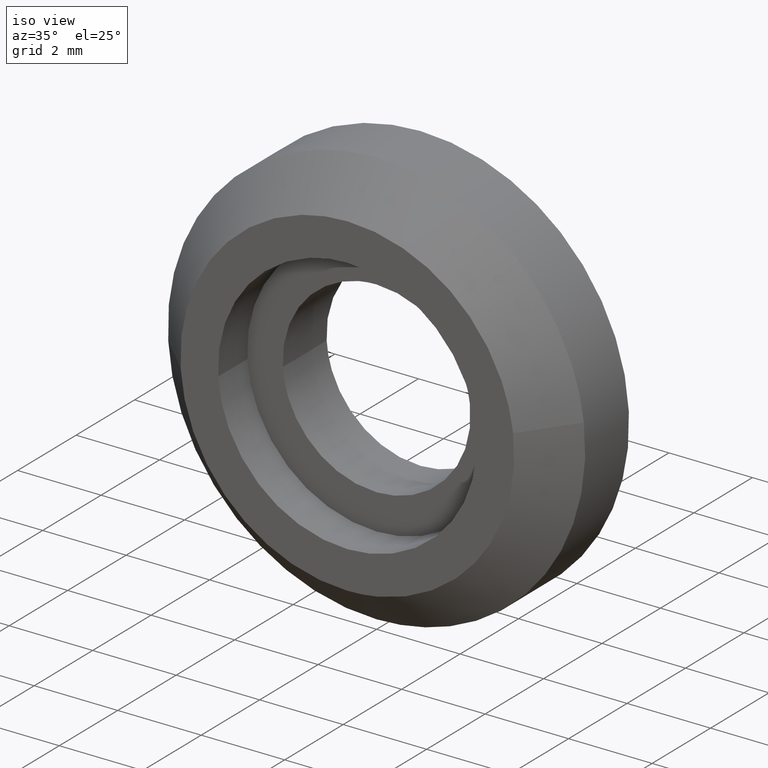
[diagram: clean part render]
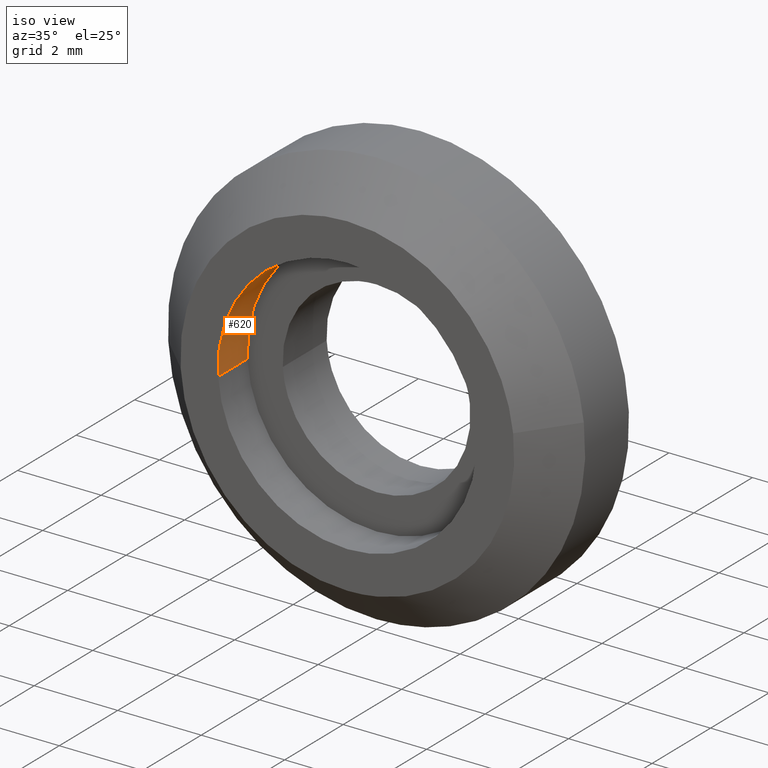
[diagram: same view with one face highlighted and labeled with its STEP entity id]
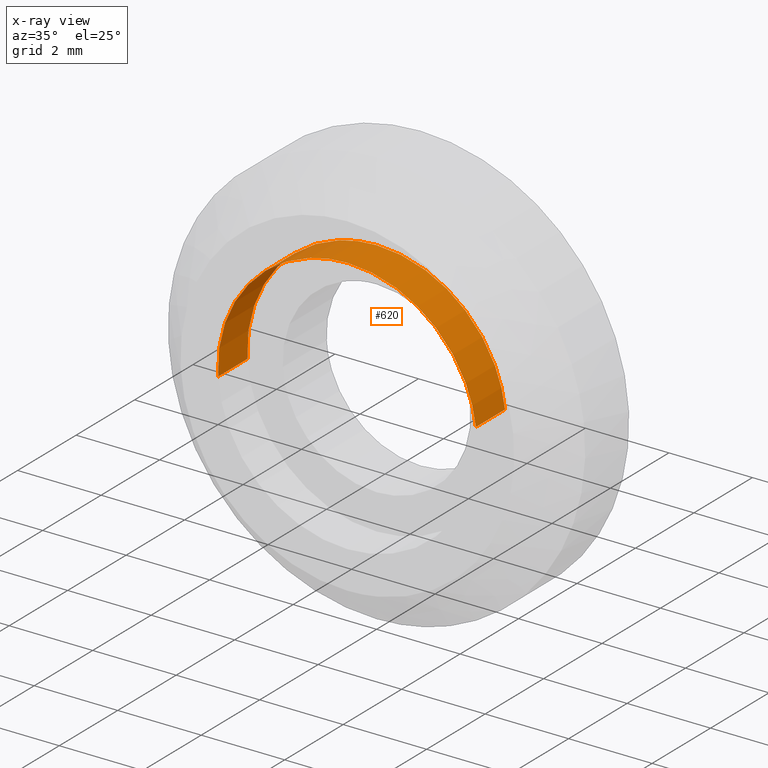
[diagram: x-ray of the same camera — body ghosted, the highlighted face saturated]
A machine part, iso view. The second image highlights one B-rep face of the part: STEP entity #620.
The next image is the same camera in x-ray: the body ghosted, the highlighted face saturated — about 0% of this face is hidden behind the body in this view.
In plain terms, the highlighted face is a freeform B-spline surface patch.
Its self-contained STEP definition (entity closure, byte-faithful):
#457=CARTESIAN_POINT('',(3.078329725640056,1.929746E-014,0.365904496061632));
#458=VERTEX_POINT('',#457);
#476=CARTESIAN_POINT('',(-3.094218017339230,2.874610E-014,-0.189248147065834));
#477=VERTEX_POINT('',#476);
#491=CARTESIAN_POINT('',(-3.094218015582970,-1.0,-0.189248175781133));
#492=VERTEX_POINT('',#491);
#493=CARTESIAN_POINT('',(-3.094218015582970,-1.0,-0.189248175781133));
#494=CARTESIAN_POINT('',(-3.094218017339230,2.874610E-014,-0.189248147065834));
#495=QUASI_UNIFORM_CURVE('',1,(#493,#494),.UNSPECIFIED.,.F.,.U.);
#496=EDGE_CURVE('',#492,#477,#495,.T.);
#513=CARTESIAN_POINT('',(3.078329723245384,-1.0,0.365904516207934));
#514=VERTEX_POINT('',#513);
#530=CARTESIAN_POINT('',(3.078329723245384,-1.0,0.365904516207934));
#531=CARTESIAN_POINT('',(3.078329725640056,1.929746E-014,0.365904496061632));
#532=QUASI_UNIFORM_CURVE('',1,(#530,#531),.UNSPECIFIED.,.F.,.U.);
#533=EDGE_CURVE('',#514,#458,#532,.T.);
#538=CARTESIAN_POINT('',(-3.094217875107787,-1.025000000000000,-0.189250472558057));
#539=CARTESIAN_POINT('',(-3.283468347665843,-1.025000000000000,2.904967402549729));
#540=CARTESIAN_POINT('',(-0.189250472558057,-1.025000000000000,3.094217875107787));
#541=CARTESIAN_POINT('',(2.732784821602453,-1.025000000000000,3.272937209870835));
#542=CARTESIAN_POINT('',(3.078329531727365,-1.025000000000000,0.365906127435951));
#543=CARTESIAN_POINT('',(-3.094217875107787,0.025625000000000,-0.189250472558057));
#544=CARTESIAN_POINT('',(-3.283468347665843,0.025625000000000,2.904967402549729));
#545=CARTESIAN_POINT('',(-0.189250472558057,0.025625000000000,3.094217875107787));
#546=CARTESIAN_POINT('',(2.732784821602453,0.025625000000000,3.272937209870835));
#547=CARTESIAN_POINT('',(3.078329531727365,0.025625000000000,0.365906127435951));
#555=(BOUNDED_SURFACE()B_SPLINE_SURFACE(2,1,((#538,#543),(#539,#544),(#540,#545),(#541,#546),(#542,#547)),.UNSPECIFIED.,.F.,.F.,.U.)B_SPLINE_SURFACE_WITH_KNOTS((3,2,3),(2,2),(0.0,5.136248173426377,10.067046419915700),(0.0,1.0),.UNSPECIFIED.)GEOMETRIC_REPRESENTATION_ITEM()RATIONAL_B_SPLINE_SURFACE(((1.0,1.0),(0.707106781186548,0.707106781186548),(1.0,1.0),(0.718822509939086,0.718822509939086),(0.977505800795127,0.977505800795127)))REPRESENTATION_ITEM('')SURFACE());
#556=CARTESIAN_POINT('',(0.0,0.0,3.100000000000000));
#557=VERTEX_POINT('',#556);
#558=CARTESIAN_POINT('',(0.0,0.0,3.100000000000000));
#559=CARTESIAN_POINT('',(2.753342499866643,0.0,3.100000000000000));
#560=CARTESIAN_POINT('',(3.078329725640056,1.929746E-014,0.365904496061632));
#568=(BOUNDED_CURVE()B_SPLINE_CURVE(2,(#558,#559,#560),.UNSPECIFIED.,.F.,.U.)B_SPLINE_CURVE_WITH_KNOTS((3,3),(0.0,0.229562563079665),.UNSPECIFIED.)CURVE()GEOMETRIC_REPRESENTATION_ITEM()RATIONAL_B_SPLINE_CURVE((1.0,0.731050727922123,0.956026929737107))REPRESENTATION_ITEM(''));
#569=EDGE_CURVE('',#557,#458,#568,.T.);
#570=ORIENTED_EDGE('',*,*,#569,.T.);
#571=ORIENTED_EDGE('',*,*,#533,.F.);
#572=CARTESIAN_POINT('',(0.0,-1.0,3.100000000000000));
#573=VERTEX_POINT('',#572);
#574=CARTESIAN_POINT('',(0.0,-1.0,3.100000000000000));
#575=CARTESIAN_POINT('',(2.753342481720389,-1.0,3.100000000000000));
#576=CARTESIAN_POINT('',(3.078329723245385,-1.0,0.365904516207934));
#584=(BOUNDED_CURVE()B_SPLINE_CURVE(2,(#574,#575,#576),.UNSPECIFIED.,.F.,.U.)B_SPLINE_CURVE_WITH_KNOTS((3,3),(0.0,0.229562561973614),.UNSPECIFIED.)CURVE()GEOMETRIC_REPRESENTATION_ITEM()RATIONAL_B_SPLINE_CURVE((1.0,0.731050729217943,0.956026927569199))REPRESENTATION_ITEM(''));
#585=EDGE_CURVE('',#573,#514,#584,.T.);
#586=ORIENTED_EDGE('',*,*,#585,.F.);
#587=CARTESIAN_POINT('',(-3.094218015582970,-1.0,-0.189248175781133));
#588=CARTESIAN_POINT('',(-3.100000000000000,-1.0,-0.094712414617259));
#589=CARTESIAN_POINT('',(-3.100000000000000,-1.0,0.0));
#590=CARTESIAN_POINT('',(-3.100000000000000,-1.0,3.100000000000000));
#591=CARTESIAN_POINT('',(0.0,-1.0,3.100000000000000));
#599=(BOUNDED_CURVE()B_SPLINE_CURVE(2,(#587,#588,#589,#590,#591),.UNSPECIFIED.,.F.,.U.)B_SPLINE_CURVE_WITH_KNOTS((3,2,3),(0.739333090320061,0.750000000000000,1.0),.UNSPECIFIED.)CURVE()GEOMETRIC_REPRESENTATION_ITEM()RATIONAL_B_SPLINE_CURVE((0.976072316169088,0.987502937956201,1.0,0.707106781186547,1.0))REPRESENTATION_ITEM(''));
#600=EDGE_CURVE('',#492,#573,#599,.T.);
#601=ORIENTED_EDGE('',*,*,#600,.F.);
#602=ORIENTED_EDGE('',*,*,#496,.T.);
#603=CARTESIAN_POINT('',(-3.094218017339231,2.874610E-014,-0.189248147065834));
#604=CARTESIAN_POINT('',(-3.100000000000000,0.0,-0.094712400219355));
#605=CARTESIAN_POINT('',(-3.100000000000000,0.0,0.0));
#606=CARTESIAN_POINT('',(-3.100000000000000,0.0,3.100000000000000));
#607=CARTESIAN_POINT('',(0.0,0.0,3.100000000000000));
#615=(BOUNDED_CURVE()B_SPLINE_CURVE(2,(#603,#604,#605,#606,#607),.UNSPECIFIED.,.F.,.U.)B_SPLINE_CURVE_WITH_KNOTS((3,2,3),(0.739333091921349,0.750000000000000,1.0),.UNSPECIFIED.)CURVE()GEOMETRIC_REPRESENTATION_ITEM()RATIONAL_B_SPLINE_CURVE((0.976072319600957,0.987502939832226,1.0,0.707106781186547,1.0))REPRESENTATION_ITEM(''));
#616=EDGE_CURVE('',#477,#557,#615,.T.);
#617=ORIENTED_EDGE('',*,*,#616,.T.);
#618=EDGE_LOOP('',(#570,#571,#586,#601,#602,#617));
#619=FACE_OUTER_BOUND('',#618,.T.);
#620=ADVANCED_FACE('',(#619),#555,.F.);